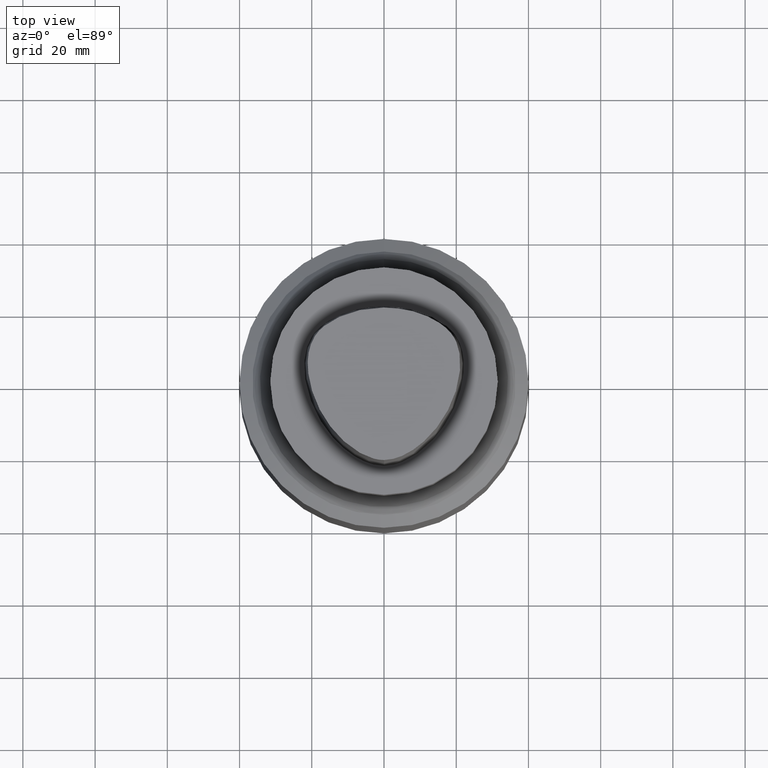
[diagram: clean part render]
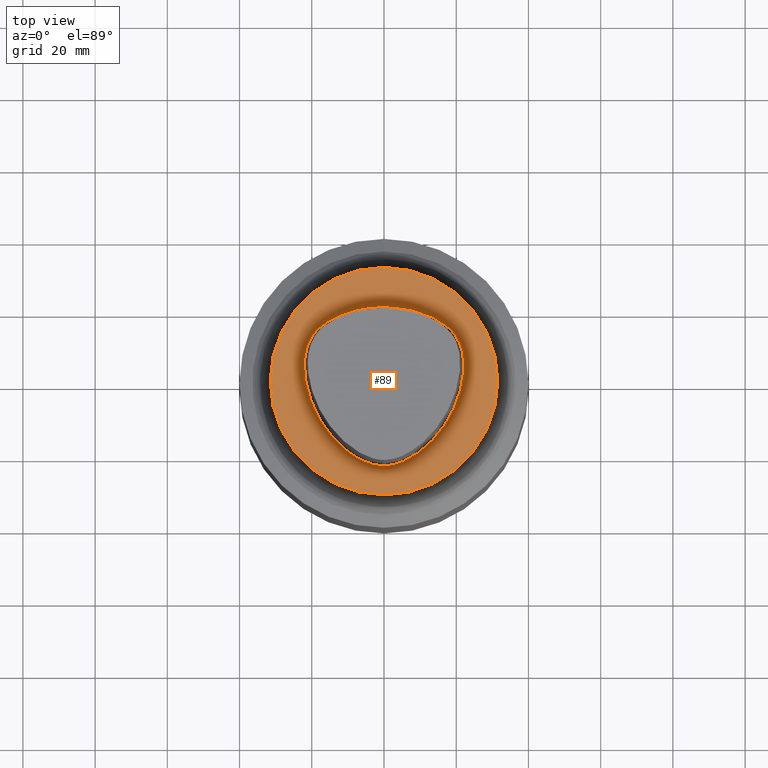
[diagram: same view with one face highlighted and labeled with its STEP entity id]
A machine part, top view. The second image highlights one B-rep face of the part: STEP entity #89.
In plain terms, the highlighted planar face has unit normal (-0, -0, 1).
Its self-contained STEP definition (entity closure, byte-faithful):
#76=EDGE_CURVE('Unnamed[1]',#158,#173,#174,.T.);
#78=EDGE_CURVE('Unnamed[1]',#176,#176,#177,.T.);
#83=EDGE_CURVE('Unnamed[1]',#173,#155,#182,.T.);
#89=ADVANCED_FACE('Unnamed[1]',(#190,#191),#192,.T.);
#91=EDGE_CURVE('Unnamed[1]',#155,#158,#194,.T.);
#155=VERTEX_POINT('',#352);
#158=VERTEX_POINT('',#357);
#173=VERTEX_POINT('',#393);
#174=B_SPLINE_CURVE_WITH_KNOTS('',3,(#394,#395,#396,#397,#398,#399,#400,#401,#402,#403,#404,#405,#406,#407,#408,#409,#410,#411),.UNSPECIFIED.,.F.,.F.,(4,1,1,1,1,1,1,1,1,2,1,1,1,1,4),(-6.6151339308743,-6.20168806019465,-5.78824218951501,-5.37479631883537,-4.96135044815572,-4.13445870679644,-3.30756696543715,-2.89412109475751,-2.48067522407786,-2.06722935339822,-1.65378348271857,-1.24033761203893,-0.826891741359287,-0.413445870679644,0.0),.UNSPECIFIED.);
#176=VERTEX_POINT('',#414);
#177=CIRCLE('',#415,31.5);
#182=CIRCLE('',#421,0.949936168436318);
#190=FACE_BOUND('',#431,.T.);
#191=FACE_OUTER_BOUND('',#432,.T.);
#192=PLANE('',#433);
#194=B_SPLINE_CURVE_WITH_KNOTS('',3,(#436,#437,#438,#439,#440,#441,#442,#443,#444,#445,#446,#447,#448,#449,#450,#451,#452),.UNSPECIFIED.,.F.,.F.,(4,1,1,1,1,1,1,1,1,1,1,1,1,1,4),(-13.2302678617486,-12.816821991069,-12.4033761203893,-11.9899302497097,-11.57648437903,-11.1630385083504,-10.9563155730106,-10.7495926376707,-10.3361467669911,-9.92270089631145,-9.09580915495216,-8.26891741359287,-7.44202567223358,-7.02857980155394,-6.6151339308743),.UNSPECIFIED.);
#352=CARTESIAN_POINT('',(0.044682985379347,20.6765087343109,1.61778115328528E-031));
#357=CARTESIAN_POINT('',(0.04359356758149,-23.4691235068931,7.78075697532443E-032));
#393=CARTESIAN_POINT('',(-0.045171994691285,20.6766009553285,1.6755590516169E-031));
#394=CARTESIAN_POINT('',(0.04359356758149,-23.4691235068931,7.78075697532443E-032));
#395=CARTESIAN_POINT('',(-1.4714994713963,-23.4767895315797,2.46519032881566E-032));
#396=CARTESIAN_POINT('',(-4.43923476371401,-22.821149804767,-4.93038065763132E-032));
#397=CARTESIAN_POINT('',(-8.35043230079961,-20.8000751253325,-9.86076131526265E-032));
#398=CARTESIAN_POINT('',(-11.744900222602,-18.1556117874078,-1.97215226305253E-031));
#399=CARTESIAN_POINT('',(-15.6989602501314,-14.0406306929147,-1.97215226305253E-031));
#400=CARTESIAN_POINT('',(-19.5352875070682,-8.00624990770787,1.97215226305253E-031));
#401=CARTESIAN_POINT('',(-21.7205626190491,-1.16081708945282,0.0));
#402=CARTESIAN_POINT('',(-22.2486616783342,4.54965558738736,0.0));
#403=CARTESIAN_POINT('',(-21.6646421256468,9.00229539124618,0.0));
#404=CARTESIAN_POINT('',(-20.3945635471922,11.7780544971003,0.0));
#405=CARTESIAN_POINT('',(-18.5925528034471,14.1980602922581,0.0));
#406=CARTESIAN_POINT('',(-16.3226584122258,16.1777748720707,0.0));
#407=CARTESIAN_POINT('',(-12.5076407874579,18.2524201541303,9.86076131526265E-032));
#408=CARTESIAN_POINT('',(-8.46776192107786,19.679114377952,9.86076131526265E-032));
#409=CARTESIAN_POINT('',(-4.23043497193604,20.487781597334,1.97215226305253E-031));
#410=CARTESIAN_POINT('',(-1.42313094248379,20.6127745766442,1.10933564796705E-031));
#411=CARTESIAN_POINT('',(-0.045171994691285,20.6766009553285,1.6755590516169E-031));
#414=CARTESIAN_POINT('',(-3.88267476788467E-031,31.5,3.85763741731416E-015));
#415=AXIS2_PLACEMENT_3D('',#606,#607,#608);
#421=AXIS2_PLACEMENT_3D('',#610,#611,#612);
#431=EDGE_LOOP('',(#620,#621,#622));
#432=EDGE_LOOP('',(#623));
#433=AXIS2_PLACEMENT_3D('',#624,#625,#626);
#436=CARTESIAN_POINT('',(0.044682985379347,20.6765087343109,1.61778115328528E-031));
#437=CARTESIAN_POINT('',(1.42379272427753,20.6097915814392,8.62816615085482E-032));
#438=CARTESIAN_POINT('',(4.2230955003445,20.4837538303966,1.4791141972894E-031));
#439=CARTESIAN_POINT('',(8.47220762821777,19.6890432607088,9.86076131526265E-032));
#440=CARTESIAN_POINT('',(12.5141247708253,18.2434968480404,0.0));
#441=CARTESIAN_POINT('',(16.3038624872874,16.1734192182143,1.97215226305253E-031));
#442=CARTESIAN_POINT('',(19.1446913988473,13.7036723639434,-1.97215226305253E-031));
#443=CARTESIAN_POINT('',(20.7319894342149,11.1014620996188,0.0));
#444=CARTESIAN_POINT('',(21.7831756505763,8.28099229708081,-1.97215226305253E-031));
#445=CARTESIAN_POINT('',(22.2258240701438,4.60865440596506,0.0));
#446=CARTESIAN_POINT('',(21.7436130080666,-1.11326526354485,0.0));
#447=CARTESIAN_POINT('',(19.5519487660502,-7.95432366164584,0.0));
#448=CARTESIAN_POINT('',(14.9574167123838,-15.2089785567293,0.0));
#449=CARTESIAN_POINT('',(9.66840283021945,-20.0827414369705,-9.86076131526265E-032));
#450=CARTESIAN_POINT('',(4.51628650521788,-22.7946374572188,-9.86076131526265E-032));
#451=CARTESIAN_POINT('',(1.55867251738073,-23.4612972770043,-1.23259516440783E-032));
#452=CARTESIAN_POINT('',(0.04359356758149,-23.4691235068931,7.78075697532443E-032));
#606=CARTESIAN_POINT('',(0.0,0.0,0.0));
#607=DIRECTION('',(6.12323399573677E-017,1.22464679914735E-016,-1.0));
#608=DIRECTION('',(-1.23259516440783E-032,1.0,1.22464679914735E-016));
#610=CARTESIAN_POINT('',(-0.001218547003662,19.7276821925089,1.97178046083078E-015));
#611=DIRECTION('',(6.12323399573677E-017,1.22464679914735E-016,-1.0));
#612=DIRECTION('',(-0.046269895968506,0.998928974816059,1.19500303158668E-016));
#620=ORIENTED_EDGE('',*,*,#91,.T.);
#621=ORIENTED_EDGE('',*,*,#76,.T.);
#622=ORIENTED_EDGE('',*,*,#83,.T.);
#623=ORIENTED_EDGE('',*,*,#78,.F.);
#624=CARTESIAN_POINT('',(-1.94133738394233E-031,15.75,1.92881870865708E-015));
#625=DIRECTION('',(-6.12323399573677E-017,-1.22464679914735E-016,1.0));
#626=DIRECTION('',(1.23259516440783E-032,-1.0,-1.22464679914735E-016));